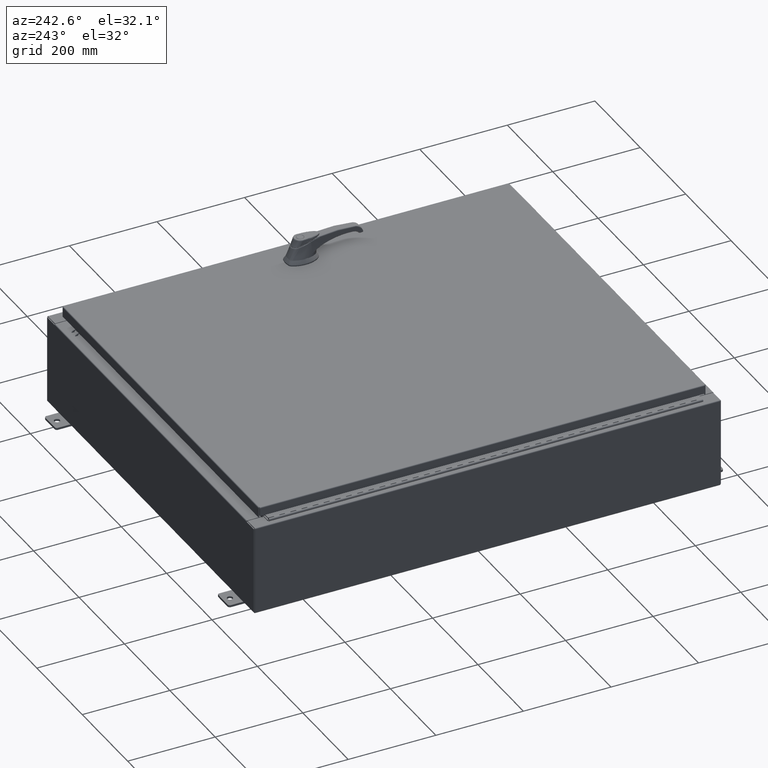
[diagram: clean part render]
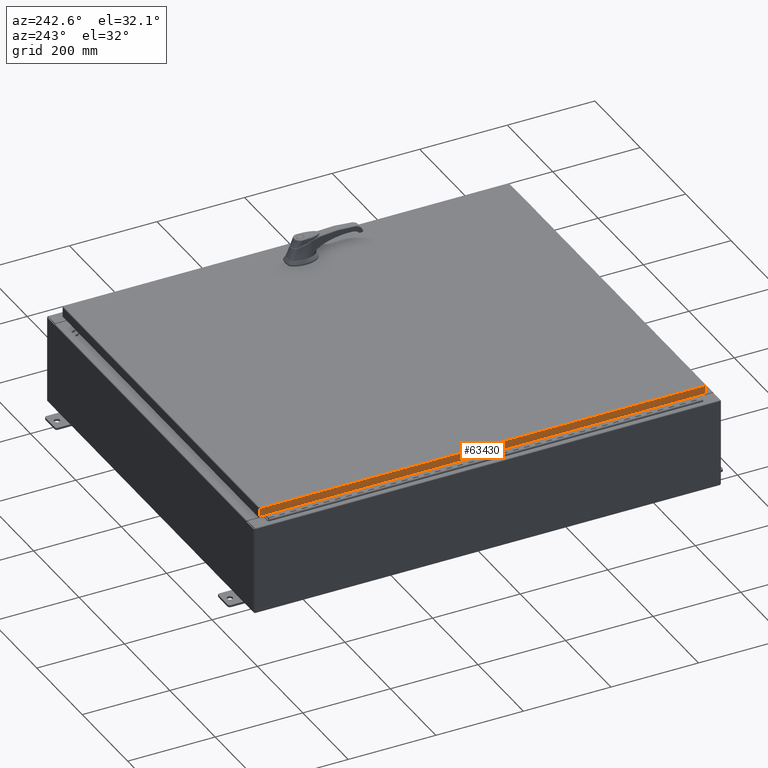
[diagram: same view with one face highlighted and labeled with its STEP entity id]
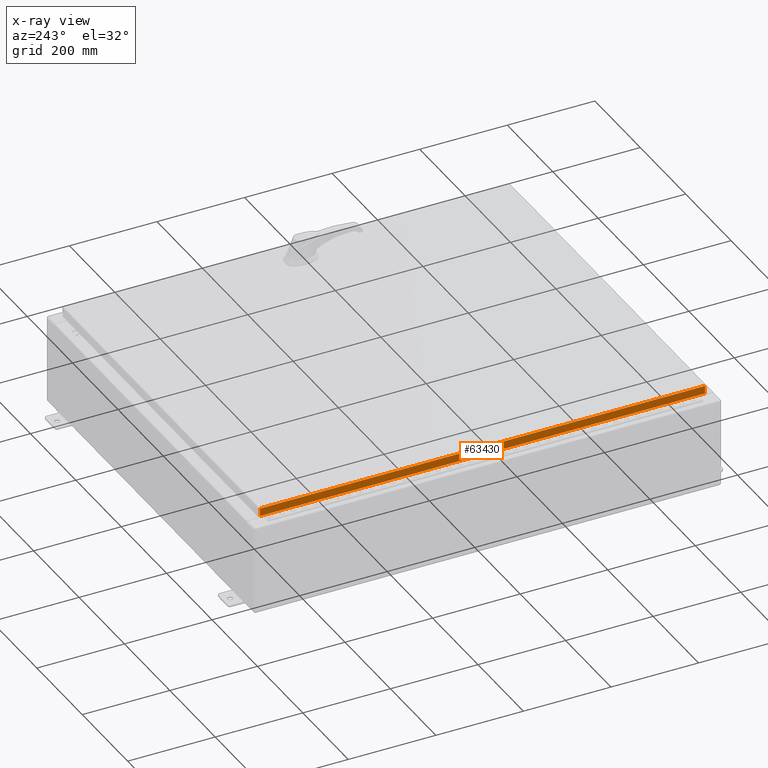
[diagram: x-ray of the same camera — body ghosted, the highlighted face saturated]
A machine part, auxiliary view. The second image highlights one B-rep face of the part: STEP entity #63430.
The next image is the same camera in x-ray: the body ghosted, the highlighted face saturated — about 0% of this face is hidden behind the body in this view.
In plain terms, the highlighted planar face has unit normal (1, -0, -0).
Its self-contained STEP definition (entity closure, byte-faithful):
#5792 = DIRECTION ( 'NONE',  ( 1.000000000000000000, -1.087627348925750600E-016, -3.034122441942816500E-015 ) ) ;
#6149 = VECTOR ( 'NONE', #120907, 39.37007874015748100 ) ;
#7040 = LINE ( 'NONE', #77011, #106169 ) ;
#7768 = DIRECTION ( 'NONE',  ( -3.034122441942816100E-015, 6.982962677686267500E-015, -1.000000000000000000 ) ) ;
#9057 = EDGE_CURVE ( 'NONE', #20012, #63684, #30703, .T. ) ;
#12588 = CARTESIAN_POINT ( 'NONE',  ( -17.07799999999999900, -20.09400000000000100, -0.08770000000000004200 ) ) ;
#14568 = DIRECTION ( 'NONE',  ( -3.034122441942816100E-015, 6.982962677686267500E-015, -1.000000000000000000 ) ) ;
#15316 = CARTESIAN_POINT ( 'NONE',  ( -17.07799999999999600, 20.00515786437626900, -0.08770000000000439900 ) ) ;
#15687 = EDGE_CURVE ( 'NONE', #63684, #109390, #32472, .T. ) ;
#20012 = VERTEX_POINT ( 'NONE', #54495 ) ;
#20215 = EDGE_CURVE ( 'NONE', #26151, #109390, #7040, .T. ) ;
#21248 = EDGE_CURVE ( 'NONE', #26151, #20012, #116900, .T. ) ;
#26151 = VERTEX_POINT ( 'NONE', #15316 ) ;
#30703 = LINE ( 'NONE', #34479, #56964 ) ;
#32472 = LINE ( 'NONE', #110865, #6149 ) ;
#34447 = EDGE_LOOP ( 'NONE', ( #82523, #115211, #126948, #34663 ) ) ;
#34479 = CARTESIAN_POINT ( 'NONE',  ( -17.07799999999999900, -20.00515786437626900, -0.07469999999999976700 ) ) ;
#34663 = ORIENTED_EDGE ( 'NONE', *, *, #9057, .F. ) ;
#37803 = VECTOR ( 'NONE', #101758, 39.37007874015748100 ) ;
#48174 = CARTESIAN_POINT ( 'NONE',  ( -17.07800000000000300, -20.00515786437626500, -0.7949999999999996000 ) ) ;
#52632 = FACE_OUTER_BOUND ( 'NONE', #34447, .T. ) ;
#54495 = CARTESIAN_POINT ( 'NONE',  ( -17.07799999999999900, -20.00515786437626900, -0.08770000000000224800 ) ) ;
#56964 = VECTOR ( 'NONE', #14568, 39.37007874015748100 ) ;
#63430 = ADVANCED_FACE ( 'NONE', ( #52632 ), #65030, .F. ) ;
#63684 = VERTEX_POINT ( 'NONE', #48174 ) ;
#63775 = AXIS2_PLACEMENT_3D ( 'NONE', #104480, #5792, #75050 ) ;
#65030 = PLANE ( 'NONE',  #63775 ) ;
#75050 = DIRECTION ( 'NONE',  ( -3.034122441942816500E-015, 0.0000000000000000000, -1.000000000000000000 ) ) ;
#77011 = CARTESIAN_POINT ( 'NONE',  ( -17.07799999999999600, 20.00515786437627200, 1.917728274476724300E-013 ) ) ;
#82523 = ORIENTED_EDGE ( 'NONE', *, *, #21248, .F. ) ;
#101758 = DIRECTION ( 'NONE',  ( -1.087627348925747400E-016, -1.000000000000000000, 1.087627348925754300E-016 ) ) ;
#104480 = CARTESIAN_POINT ( 'NONE',  ( -17.07799999999999600, 1.857449986495396100E-015, 5.207755671951099000E-014 ) ) ;
#106169 = VECTOR ( 'NONE', #7768, 39.37007874015748100 ) ;
#109390 = VERTEX_POINT ( 'NONE', #112764 ) ;
#110865 = CARTESIAN_POINT ( 'NONE',  ( -17.07800000000000300, -20.09400000000000100, -0.7949999999999997100 ) ) ;
#112764 = CARTESIAN_POINT ( 'NONE',  ( -17.07799999999999600, 20.00515786437628000, -0.7949999999999948200 ) ) ;
#115211 = ORIENTED_EDGE ( 'NONE', *, *, #20215, .T. ) ;
#116900 = LINE ( 'NONE', #12588, #37803 ) ;
#120907 = DIRECTION ( 'NONE',  ( 1.087627348925754300E-016, 1.000000000000000000, 1.223580767541473800E-016 ) ) ;
#126948 = ORIENTED_EDGE ( 'NONE', *, *, #15687, .F. ) ;